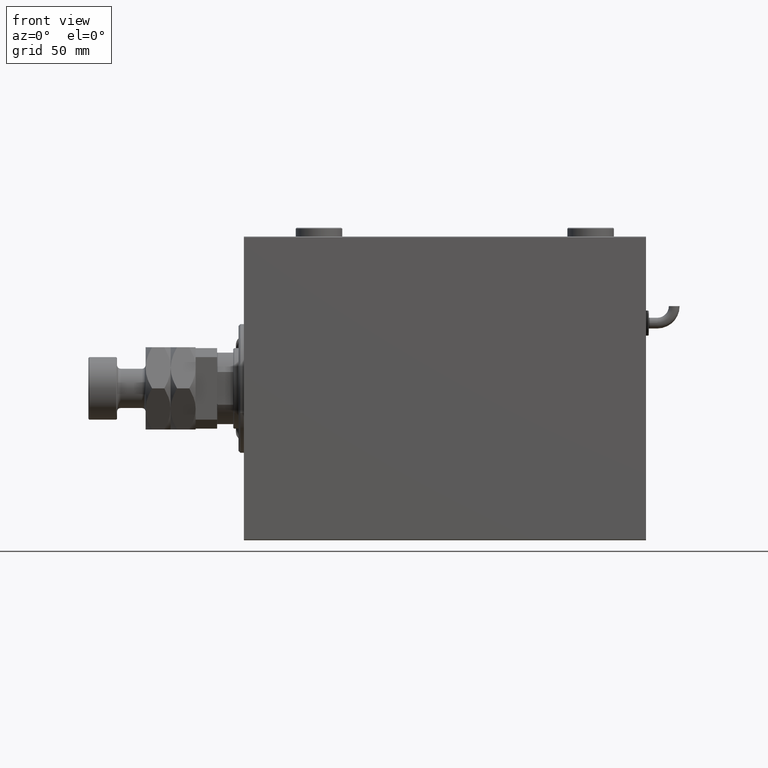
[diagram: clean part render]
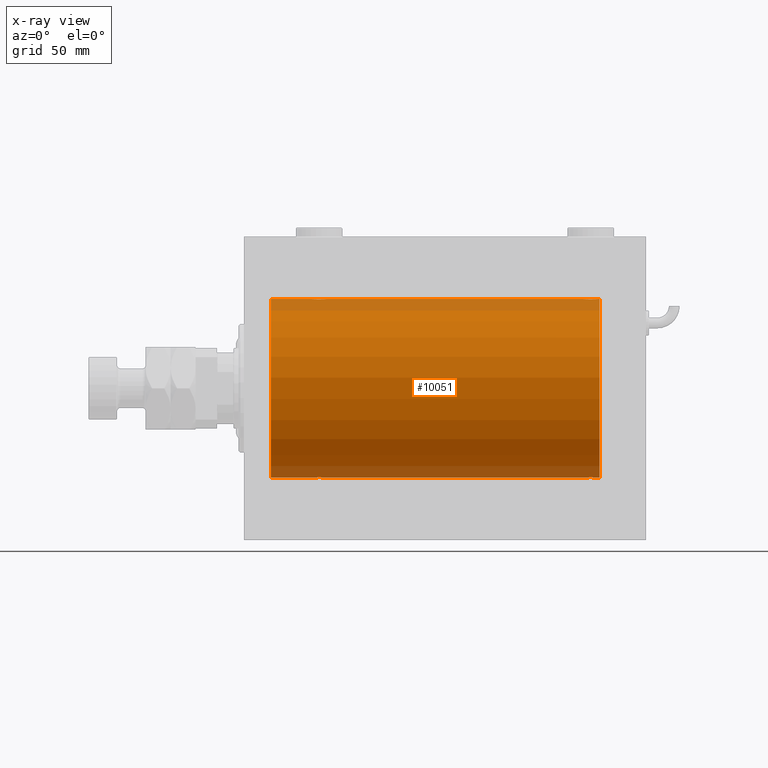
[diagram: x-ray — body ghosted, one internal face saturated and labeled with its STEP entity id]
A machine part, front view, then the same camera in x-ray: the body is ghosted and one INTERNAL B-rep face — a face not visible from any outside direction — is saturated and labeled: STEP entity #10051.
In plain terms, the highlighted cylindrical surface (partial cylindrical patch) has radius 50 mm, axis along (-1, -0, -0).
Its self-contained STEP definition (entity closure, byte-faithful):
#401 = CARTESIAN_POINT ( 'NONE',  ( 43.88217049484444487, -3.820681512513380618, 49.85392475515401856 ) ) ;
#463 = CARTESIAN_POINT ( 'NONE',  ( 46.25000000000000000, 3.663389736015513070E-16, 50.00000000000000000 ) ) ;
#626 = LINE ( 'NONE', #39404, #44967 ) ;
#698 = CARTESIAN_POINT ( 'NONE',  ( 190.6248001591803245, -2.597781786597481712, -49.93300953359122474 ) ) ;
#1006 = CARTESIAN_POINT ( 'NONE',  ( 196.1313639944615375, -3.687400765141540582, -49.86408552998298660 ) ) ;
#1328 = CARTESIAN_POINT ( 'NONE',  ( 39.86863600553844833, -3.687400765141530812, 49.86408552998298660 ) ) ;
#1381 = DIRECTION ( 'NONE',  ( 0.000000000000000000, 0.000000000000000000, 1.000000000000000000 ) ) ;
#1653 = CARTESIAN_POINT ( 'NONE',  ( 39.19302168160690769, -3.203153387937303087, -49.89767833571684008 ) ) ;
#1890 = VECTOR ( 'NONE', #51805, 1000.000000000000000 ) ;
#2011 = DIRECTION ( 'NONE',  ( -1.000000000000000000, -0.000000000000000000, -0.000000000000000000 ) ) ;
#2275 = CARTESIAN_POINT ( 'NONE',  ( 37.88750298919665482, -1.108337267831482009, -49.98846998601261760 ) ) ;
#3023 = EDGE_CURVE ( 'NONE', #11261, #37707, #18499, .T. ) ;
#3312 = CARTESIAN_POINT ( 'NONE',  ( 194.2772492703792580, -4.250219976861652427, 49.81902879621016211 ) ) ;
#4261 = LINE ( 'NONE', #43673, #46289 ) ;
#4262 = CARTESIAN_POINT ( 'NONE',  ( 191.4068727911404437, -3.378657745070624330, 49.88595615988430154 ) ) ;
#4376 = CARTESIAN_POINT ( 'NONE',  ( 15.00000000000001421, 6.123233995736766085E-15, -50.00000000000000000 ) ) ;
#4426 = LINE ( 'NONE', #61982, #54445 ) ;
#4856 = CARTESIAN_POINT ( 'NONE',  ( 189.7500000000000568, -0.2808785465865829556, -50.00000000000001421 ) ) ;
#5175 = CARTESIAN_POINT ( 'NONE',  ( 45.37519984081966840, -2.597781786597463061, 49.93300953359122474 ) ) ;
#5784 = CARTESIAN_POINT ( 'NONE',  ( 190.3139716787804332, -2.133925816755195992, -49.95498245321557818 ) ) ;
#6019 = DIRECTION ( 'NONE',  ( -1.000000000000000000, -0.000000000000000000, -0.000000000000000000 ) ) ;
#6417 = CARTESIAN_POINT ( 'NONE',  ( 43.36710647554575360, -4.033756670430848068, 49.83713703490974467 ) ) ;
#6426 = CARTESIAN_POINT ( 'NONE',  ( 39.41179785323798512, -3.382416624899766244, -49.88570010427955026 ) ) ;
#6736 = CARTESIAN_POINT ( 'NONE',  ( 45.37881717263738324, -2.593114840406115729, -49.93325460257640458 ) ) ;
#7355 = CARTESIAN_POINT ( 'NONE',  ( 45.82100581985224608, -1.881229021238117749, -49.96525240872482954 ) ) ;
#7515 = EDGE_CURVE ( 'NONE', #43473, #11261, #4261, .T. ) ;
#7634 = ORIENTED_EDGE ( 'NONE', *, *, #35667, .F. ) ;
#7860 = DIRECTION ( 'NONE',  ( -1.000000000000000000, 0.000000000000000000, 0.000000000000000000 ) ) ;
#8397 = CARTESIAN_POINT ( 'NONE',  ( 197.3751998408197323, -2.597781786597469278, 49.93300953359122474 ) ) ;
#9035 = CARTESIAN_POINT ( 'NONE',  ( 195.0973761787903982, -4.115209769591111844, 49.83039196709102470 ) ) ;
#9646 = CARTESIAN_POINT ( 'NONE',  ( 198.1124970108033949, -1.108337267831489781, 49.98846998601262470 ) ) ;
#9929 = CARTESIAN_POINT ( 'NONE',  ( 190.8007807203871664, -2.811461347331121186, -49.92127983148852621 ) ) ;
#9948 = CARTESIAN_POINT ( 'NONE',  ( 46.03079796155343928, -1.375411031076042789, 49.98173289062309266 ) ) ;
#10051 = ADVANCED_FACE ( 'NONE', ( #31270 ), #44942, .F. ) ;
#10124 = DIRECTION ( 'NONE',  ( -1.000000000000000000, -0.000000000000000000, -0.000000000000000000 ) ) ;
#10228 = CARTESIAN_POINT ( 'NONE',  ( 197.8210058198523313, -1.881229021238119969, -49.96525240872482954 ) ) ;
#10249 = CARTESIAN_POINT ( 'NONE',  ( 41.44002132304352415, -4.222042462213121183, 49.82145436824653473 ) ) ;
#10538 = CARTESIAN_POINT ( 'NONE',  ( 190.1816075101212675, -1.886522330773430234, -49.96505190380066352 ) ) ;
#10563 = CARTESIAN_POINT ( 'NONE',  ( 44.80697831839309231, -3.203153387937317298, 49.89767833571684008 ) ) ;
#10879 = CARTESIAN_POINT ( 'NONE',  ( 39.18846933484581996, -3.199146701881674382, 49.89793607725462010 ) ) ;
#11188 = CARTESIAN_POINT ( 'NONE',  ( 41.71604712973302043, -4.249777379711404457, 49.81906655360197789 ) ) ;
#11261 = VERTEX_POINT ( 'NONE', #34868 ) ;
#11378 = ORIENTED_EDGE ( 'NONE', *, *, #16493, .T. ) ;
#11430 = AXIS2_PLACEMENT_3D ( 'NONE', #14694, #15018, #34101 ) ;
#11813 = CARTESIAN_POINT ( 'NONE',  ( 46.25000000000000000, 6.123233970928975205E-15, -50.00000000000000000 ) ) ;
#12137 = CARTESIAN_POINT ( 'NONE',  ( 46.03272642097310552, -1.369753890039644872, -49.98188917176551627 ) ) ;
#12301 = CARTESIAN_POINT ( 'NONE',  ( 199.0000000000000000, 0.000000000000000000, 0.000000000000000000 ) ) ;
#12450 = CARTESIAN_POINT ( 'NONE',  ( 43.37333436579038448, -4.031616700143171528, -49.83731072121799599 ) ) ;
#12570 = CARTESIAN_POINT ( 'NONE',  ( 198.2500000000000000, 6.123233970934497231E-15, -50.00000000000000000 ) ) ;
#12861 = CARTESIAN_POINT ( 'NONE',  ( 191.1884693348458768, -3.199146701881688148, 49.89793607725461300 ) ) ;
#13180 = CARTESIAN_POINT ( 'NONE',  ( 196.5882021467620291, -3.382416624899781343, 49.88570010427955737 ) ) ;
#13799 = CARTESIAN_POINT ( 'NONE',  ( 198.0307979615535032, -1.375411031076037682, 49.98173289062309266 ) ) ;
#14382 = CARTESIAN_POINT ( 'NONE',  ( 189.7500000000000000, -1.477075025308699456E-14, -50.00000000000000000 ) ) ;
#14682 = CARTESIAN_POINT ( 'NONE',  ( 197.2030356195199374, -2.807099414226280842, -49.92152599098506727 ) ) ;
#14694 = CARTESIAN_POINT ( 'NONE',  ( 15.00000000000001421, 0.000000000000000000, 0.000000000000000000 ) ) ;
#14702 = CARTESIAN_POINT ( 'NONE',  ( 45.19921927961281938, -2.811461347331102534, 49.92127983148851911 ) ) ;
#14720 = CARTESIAN_POINT ( 'NONE',  ( 198.2500000000000000, 3.264238863893571870E-15, 50.00000000000000000 ) ) ;
#14882 = CARTESIAN_POINT ( 'NONE',  ( 37.75000000000000711, 3.968053759906218216E-15, -50.00000000000000000 ) ) ;
#14928 = DIRECTION ( 'NONE',  ( -1.000000000000000000, -0.000000000000000000, -0.000000000000000000 ) ) ;
#14991 = VERTEX_POINT ( 'NONE', #4376 ) ;
#15018 = DIRECTION ( 'NONE',  ( -1.000000000000000000, 0.000000000000000000, 0.000000000000000000 ) ) ;
#15026 = CARTESIAN_POINT ( 'NONE',  ( 43.09737617879038396, -4.115209769591109179, 49.83039196709101759 ) ) ;
#15327 = CARTESIAN_POINT ( 'NONE',  ( 37.75000000000000711, -2.480770331693776875E-23, 50.00000000000000000 ) ) ;
#15646 = CARTESIAN_POINT ( 'NONE',  ( 37.96727357902688738, -1.369753890039653310, 49.98188917176553048 ) ) ;
#15718 = CARTESIAN_POINT ( 'NONE',  ( 198.2500000000000000, 3.264238863893571870E-15, 50.00000000000000000 ) ) ;
#16271 = CARTESIAN_POINT ( 'NONE',  ( 38.62480015918035292, -2.597781786597455067, -49.93300953359122474 ) ) ;
#16493 = EDGE_CURVE ( 'NONE', #14991, #62210, #28742, .T. ) ;
#16743 = ORIENTED_EDGE ( 'NONE', *, *, #7515, .T. ) ;
#16905 = CARTESIAN_POINT ( 'NONE',  ( 46.22310752799001676, -0.5531336717328987351, -49.99769193709645521 ) ) ;
#17225 = CARTESIAN_POINT ( 'NONE',  ( 45.20303561951989479, -2.807099414226266632, -49.92152599098507437 ) ) ;
#17542 = CARTESIAN_POINT ( 'NONE',  ( 39.87368355124921493, -3.690299572754706325, -49.86386974736159772 ) ) ;
#17945 = CARTESIAN_POINT ( 'NONE',  ( 194.5540856488015606, -4.222816005855213994, 49.82138837911248430 ) ) ;
#18269 = CARTESIAN_POINT ( 'NONE',  ( 192.6266656342096724, -4.031616700143195509, 49.83731072121800310 ) ) ;
#18499 = B_SPLINE_CURVE_WITH_KNOTS ( 'NONE', 3,
 ( #11813, #35985, #16905, #21993, #12137, #7355, #26445, #6736, #17225, #36623, #56022, #45840, #45535, #12450, #31862, #27089, #46492, #45216, #55381, #31228, #41709, #61093, #17542, #6426, #1653, #21051, #16271, #35669, #55069, #50629, #2275, #21677, #41067, #60458 ),
 .UNSPECIFIED., .F., .F.,
 ( 4, 2, 2, 2, 2, 2, 2, 2, 2, 2, 2, 2, 2, 2, 2, 2, 4 ),
 ( 0.01329343152928757349, 0.01412407817529635554, 0.01495472482130513932, 0.01578537146731392310, 0.01661601811332270515, 0.01744666475933148719, 0.01827731140534026924, 0.01910795805134905129, 0.01993860469735783680, 0.02076925134336661885, 0.02159989798937540090, 0.02243054463538418294, 0.02326119128139296499, 0.02409183792740174704, 0.02492248457341052909, 0.02575313121941931460, 0.02658377786542809665 ),
 .UNSPECIFIED. ) ;
#18568 = CARTESIAN_POINT ( 'NONE',  ( 197.6860283212195100, -2.133925816755183114, 49.95498245321557107 ) ) ;
#18883 = CARTESIAN_POINT ( 'NONE',  ( 190.3106284432061841, -2.128188802142376712, 49.95522967821975158 ) ) ;
#19158 = CARTESIAN_POINT ( 'NONE',  ( 189.7775736447921986, -0.5587117664567311515, -49.99763378604802000 ) ) ;
#19373 = ORIENTED_EDGE ( 'NONE', *, *, #39258, .T. ) ;
#19453 = CARTESIAN_POINT ( 'NONE',  ( 198.0327264209731482, -1.369753890039646427, -49.98188917176553048 ) ) ;
#19473 = CARTESIAN_POINT ( 'NONE',  ( 44.12631644875080639, -3.690299572754720536, 49.86386974736160482 ) ) ;
#19764 = CARTESIAN_POINT ( 'NONE',  ( 196.5931272088595563, -3.378657745070634100, -49.88595615988430154 ) ) ;
#20082 = CARTESIAN_POINT ( 'NONE',  ( 195.3733343657903845, -4.031616700143205279, -49.83731072121799599 ) ) ;
#20204 = VERTEX_POINT ( 'NONE', #463 ) ;
#20387 = CARTESIAN_POINT ( 'NONE',  ( 192.1178295051555835, -3.820681512513397937, -49.85392475515401145 ) ) ;
#20623 = DIRECTION ( 'NONE',  ( -1.000000000000000000, -0.000000000000000000, -0.000000000000000000 ) ) ;
#20800 = EDGE_CURVE ( 'NONE', #37707, #14991, #626, .T. ) ;
#21051 = CARTESIAN_POINT ( 'NONE',  ( 38.80078072038718062, -2.811461347331092320, -49.92127983148853332 ) ) ;
#21677 = CARTESIAN_POINT ( 'NONE',  ( 37.77757364479219149, -0.5587117664567073927, -49.99763378604802000 ) ) ;
#21993 = CARTESIAN_POINT ( 'NONE',  ( 46.11431913306007147, -1.101350136471736407, -49.98862054280446898 ) ) ;
#23342 = CARTESIAN_POINT ( 'NONE',  ( 193.4400213230435384, -4.222042462213130953, 49.82145436824653473 ) ) ;
#23516 = VERTEX_POINT ( 'NONE', #12570 ) ;
#23649 = CARTESIAN_POINT ( 'NONE',  ( 189.8856808669399925, -1.101350136471745955, 49.98862054280449740 ) ) ;
#23933 = CARTESIAN_POINT ( 'NONE',  ( 192.6328935244542606, -4.033756670430864943, -49.83713703490974467 ) ) ;
#23965 = CARTESIAN_POINT ( 'NONE',  ( 192.1125526060720290, -3.818052230167728656, 49.85412671291929598 ) ) ;
#24541 = CARTESIAN_POINT ( 'NONE',  ( 197.6893715567939012, -2.128188802142362945, -49.95522967821975158 ) ) ;
#24592 = VERTEX_POINT ( 'NONE', #47806 ) ;
#24909 = VECTOR ( 'NONE', #6019, 1000.000000000000000 ) ;
#25135 = AXIS2_PLACEMENT_3D ( 'NONE', #12301, #7860, #46656 ) ;
#25165 = CARTESIAN_POINT ( 'NONE',  ( 193.7227507296208273, -4.250219976861660420, -49.81902879621013369 ) ) ;
#25895 = EDGE_CURVE ( 'NONE', #55881, #20204, #48336, .T. ) ;
#26180 = EDGE_CURVE ( 'NONE', #24592, #27603, #58805, .T. ) ;
#26445 = CARTESIAN_POINT ( 'NONE',  ( 45.68937155679385853, -2.128188802142354508, -49.95522967821975158 ) ) ;
#27089 = CARTESIAN_POINT ( 'NONE',  ( 42.55997867695646164, -4.222042462213109637, -49.82145436824654183 ) ) ;
#27492 = CARTESIAN_POINT ( 'NONE',  ( 189.7768924720100188, -0.5531336717329069508, 49.99769193709643389 ) ) ;
#27603 = VERTEX_POINT ( 'NONE', #15718 ) ;
#28117 = CARTESIAN_POINT ( 'NONE',  ( 192.8967670396579024, -4.113647494206492894, 49.83052139214893117 ) ) ;
#28742 = CIRCLE ( 'NONE', #11430, 50.00000000000000000 ) ;
#29343 = CARTESIAN_POINT ( 'NONE',  ( 46.11249701080335939, -1.108337267831489337, 49.98846998601261760 ) ) ;
#29624 = CARTESIAN_POINT ( 'NONE',  ( 195.1032329603422113, -4.113647494206493782, -49.83052139214891696 ) ) ;
#29647 = CARTESIAN_POINT ( 'NONE',  ( 46.25000000000002132, -0.2808785465865649700, 50.00000000000000711 ) ) ;
#29669 = ORIENTED_EDGE ( 'NONE', *, *, #20800, .T. ) ;
#29941 = CARTESIAN_POINT ( 'NONE',  ( 196.8115306651542369, -3.199146701881677934, -49.89793607725460589 ) ) ;
#30187 = CARTESIAN_POINT ( 'NONE',  ( 199.0000000000000000, 0.000000000000000000, 50.00000000000000000 ) ) ;
#30248 = ORIENTED_EDGE ( 'NONE', *, *, #3023, .T. ) ;
#30282 = CARTESIAN_POINT ( 'NONE',  ( 40.11255260607202189, -3.818052230167719774, 49.85412671291930309 ) ) ;
#30585 = CARTESIAN_POINT ( 'NONE',  ( 37.77689247200999745, -0.5531336717329055075, 49.99769193709644099 ) ) ;
#30946 = CARTESIAN_POINT ( 'NONE',  ( 199.0000000000000000, 0.000000000000000000, 0.000000000000000000 ) ) ;
#31228 = CARTESIAN_POINT ( 'NONE',  ( 40.90262382120962315, -4.115209769591094968, -49.83039196709103891 ) ) ;
#31270 = FACE_OUTER_BOUND ( 'NONE', #33162, .T. ) ;
#31862 = CARTESIAN_POINT ( 'NONE',  ( 43.10323296034215446, -4.113647494206469801, -49.83052139214892406 ) ) ;
#32256 = CARTESIAN_POINT ( 'NONE',  ( 189.7500000000000000, -1.477075025308699456E-14, -50.00000000000000000 ) ) ;
#32718 = LINE ( 'NONE', #42245, #1890 ) ;
#32892 = CARTESIAN_POINT ( 'NONE',  ( 189.7500000000000000, -2.480257572105383217E-23, 50.00000000000000000 ) ) ;
#33162 = EDGE_LOOP ( 'NONE', ( #7634, #19373, #48394, #16743, #30248, #29669, #11378, #45003, #59388, #54139, #59720, #43490 ) ) ;
#33483 = CARTESIAN_POINT ( 'NONE',  ( 192.9026238212096303, -4.115209769591121614, -49.83039196709102470 ) ) ;
#34086 = CARTESIAN_POINT ( 'NONE',  ( 195.8874473939279994, -3.818052230167738870, -49.85412671291929598 ) ) ;
#34101 = DIRECTION ( 'NONE',  ( 0.000000000000000000, 0.000000000000000000, 1.000000000000000000 ) ) ;
#34108 = CARTESIAN_POINT ( 'NONE',  ( 45.68602832121950286, -2.133925816755177785, 49.95498245321557107 ) ) ;
#34426 = CARTESIAN_POINT ( 'NONE',  ( 46.22242635520781562, -0.5587117664567134989, 49.99763378604802710 ) ) ;
#34729 = CARTESIAN_POINT ( 'NONE',  ( 38.17899418014773261, -1.881229021238126631, 49.96525240872482954 ) ) ;
#34868 = CARTESIAN_POINT ( 'NONE',  ( 46.25000000000000000, 6.123233970928975205E-15, -50.00000000000000000 ) ) ;
#35045 = CARTESIAN_POINT ( 'NONE',  ( 38.31062844320614147, -2.128188802142366054, 49.95522967821974447 ) ) ;
#35059 = CARTESIAN_POINT ( 'NONE',  ( 198.2224263552077730, -0.5587117664567127218, 49.99763378604802710 ) ) ;
#35667 = EDGE_CURVE ( 'NONE', #59165, #24592, #36299, .T. ) ;
#35669 = CARTESIAN_POINT ( 'NONE',  ( 38.31397167878049714, -2.133925816755172455, -49.95498245321557818 ) ) ;
#35985 = CARTESIAN_POINT ( 'NONE',  ( 46.25000000000000711, -0.2773743941468470586, -50.00000000000000711 ) ) ;
#36299 = CIRCLE ( 'NONE', #25135, 50.00000000000000000 ) ;
#36553 = EDGE_CURVE ( 'NONE', #40552, #20204, #61432, .T. ) ;
#36623 = CARTESIAN_POINT ( 'NONE',  ( 44.81153066515420136, -3.199146701881660171, -49.89793607725462010 ) ) ;
#37707 = VERTEX_POINT ( 'NONE', #14882 ) ;
#38548 = CARTESIAN_POINT ( 'NONE',  ( 191.1930216816069219, -3.203153387937335062, -49.89767833571684008 ) ) ;
#38582 = CARTESIAN_POINT ( 'NONE',  ( 198.2500000000000000, -0.2808785465865640818, 50.00000000000000711 ) ) ;
#38842 = CARTESIAN_POINT ( 'NONE',  ( 191.4117978532380278, -3.382416624899811097, -49.88570010427955737 ) ) ;
#38861 = CARTESIAN_POINT ( 'NONE',  ( 44.58820214676200067, -3.382416624899780011, 49.88570010427955737 ) ) ;
#39150 = CARTESIAN_POINT ( 'NONE',  ( 198.1143191330600644, -1.101350136471741070, -49.98862054280448319 ) ) ;
#39171 = CARTESIAN_POINT ( 'NONE',  ( 42.55408564880149669, -4.222816005855206889, 49.82138837911247009 ) ) ;
#39258 = EDGE_CURVE ( 'NONE', #59165, #23516, #32718, .T. ) ;
#39404 = CARTESIAN_POINT ( 'NONE',  ( 199.0000000000000000, 6.123233995736766085E-15, -50.00000000000000000 ) ) ;
#39659 = CARTESIAN_POINT ( 'NONE',  ( 189.7500000000000000, -2.480257572105383217E-23, 50.00000000000000000 ) ) ;
#40552 = VERTEX_POINT ( 'NONE', #44740 ) ;
#41067 = CARTESIAN_POINT ( 'NONE',  ( 37.75000000000001421, -0.2808785465865586972, -50.00000000000001421 ) ) ;
#41709 = CARTESIAN_POINT ( 'NONE',  ( 40.63289352445425351, -4.033756670430834745, -49.83713703490973757 ) ) ;
#42245 = CARTESIAN_POINT ( 'NONE',  ( 199.0000000000000000, 6.123233995736766085E-15, -50.00000000000000000 ) ) ;
#42432 = CARTESIAN_POINT ( 'NONE',  ( 191.8686360055384057, -3.687400765141532588, 49.86408552998298660 ) ) ;
#42742 = CARTESIAN_POINT ( 'NONE',  ( 196.1263164487508277, -3.690299572754723201, 49.86386974736159772 ) ) ;
#43180 = VECTOR ( 'NONE', #14928, 1000.000000000000000 ) ;
#43332 = CARTESIAN_POINT ( 'NONE',  ( 191.8736835512492291, -3.690299572754748958, -49.86386974736159061 ) ) ;
#43344 = B_SPLINE_CURVE_WITH_KNOTS ( 'NONE', 3,
 ( #32892, #62426, #27492, #23649, #51978, #47832, #18883, #56423, #57685, #12861, #4262, #42432, #23965, #18269, #28117, #23342, #46885, #3312, #17945, #9035, #43366, #61497, #42742, #13180, #61814, #62116, #8397, #18568, #57365, #13799, #9646, #35059, #38582, #14720 ),
 .UNSPECIFIED., .F., .F.,
 ( 4, 2, 2, 2, 2, 2, 2, 2, 2, 2, 2, 2, 2, 2, 2, 2, 4 ),
 ( 0.01329343152928759257, 0.01412407817529637809, 0.01495472482130516534, 0.01578537146731395086, 0.01661601811332273637, 0.01744666475933152189, 0.01827731140534030740, 0.01910795805134909292, 0.01993860469735787844, 0.02076925134336666048, 0.02159989798937544947, 0.02243054463538423499, 0.02326119128139302050, 0.02409183792740180602, 0.02492248457341059154, 0.02575313121941937705, 0.02658377786542816257 ),
 .UNSPECIFIED. ) ;
#43366 = CARTESIAN_POINT ( 'NONE',  ( 195.3671064755457678, -4.033756670430855173, 49.83713703490974467 ) ) ;
#43473 = VERTEX_POINT ( 'NONE', #32256 ) ;
#43490 = ORIENTED_EDGE ( 'NONE', *, *, #26180, .F. ) ;
#43673 = CARTESIAN_POINT ( 'NONE',  ( 199.0000000000000000, 6.123233995736766085E-15, -50.00000000000000000 ) ) ;
#43940 = CARTESIAN_POINT ( 'NONE',  ( 189.9692020384465536, -1.375411031076053447, -49.98173289062309976 ) ) ;
#44242 = AXIS2_PLACEMENT_3D ( 'NONE', #30946, #2011, #1381 ) ;
#44270 = CARTESIAN_POINT ( 'NONE',  ( 38.62118282736263097, -2.593114840406129940, 49.93325460257640458 ) ) ;
#44740 = CARTESIAN_POINT ( 'NONE',  ( 37.75000000000000711, -2.480770331693776875E-23, 50.00000000000000000 ) ) ;
#44891 = CARTESIAN_POINT ( 'NONE',  ( 38.79696438048011942, -2.807099414226279510, 49.92152599098507437 ) ) ;
#44942 = CYLINDRICAL_SURFACE ( 'NONE', #44242, 50.00000000000000000 ) ;
#44967 = VECTOR ( 'NONE', #20623, 1000.000000000000000 ) ;
#45003 = ORIENTED_EDGE ( 'NONE', *, *, #53438, .F. ) ;
#45216 = CARTESIAN_POINT ( 'NONE',  ( 41.72275072962082021, -4.250219976861628446, -49.81902879621016211 ) ) ;
#45535 = CARTESIAN_POINT ( 'NONE',  ( 43.88744739392799943, -3.818052230167706007, -49.85412671291931730 ) ) ;
#45840 = CARTESIAN_POINT ( 'NONE',  ( 44.13136399446156588, -3.687400765141517045, -49.86408552998297239 ) ) ;
#46289 = VECTOR ( 'NONE', #53530, 1000.000000000000000 ) ;
#46492 = CARTESIAN_POINT ( 'NONE',  ( 42.28395287026697247, -4.249777379711388470, -49.81906655360197789 ) ) ;
#46551 = EDGE_CURVE ( 'NONE', #23516, #43473, #49817, .T. ) ;
#46656 = DIRECTION ( 'NONE',  ( 0.000000000000000000, 0.000000000000000000, 1.000000000000000000 ) ) ;
#46885 = CARTESIAN_POINT ( 'NONE',  ( 193.7160471297329991, -4.249777379711411562, 49.81906655360197078 ) ) ;
#47806 = CARTESIAN_POINT ( 'NONE',  ( 199.0000000000000000, 0.000000000000000000, 50.00000000000000000 ) ) ;
#47832 = CARTESIAN_POINT ( 'NONE',  ( 190.1789941801477539, -1.881229021238137955, 49.96525240872482243 ) ) ;
#48336 = LINE ( 'NONE', #62007, #43180 ) ;
#48394 = ORIENTED_EDGE ( 'NONE', *, *, #46551, .T. ) ;
#49023 = CARTESIAN_POINT ( 'NONE',  ( 194.5599786769564901, -4.222042462213138947, -49.82145436824653473 ) ) ;
#49343 = CARTESIAN_POINT ( 'NONE',  ( 193.4459143511985246, -4.222816005855223764, -49.82138837911247009 ) ) ;
#49364 = CARTESIAN_POINT ( 'NONE',  ( 37.88568086693991432, -1.101350136471744623, 49.98862054280448319 ) ) ;
#49817 = B_SPLINE_CURVE_WITH_KNOTS ( 'NONE', 3,
 ( #53175, #53493, #54107, #39150, #19453, #10228, #24541, #57951, #14682, #29941, #19764, #1006, #34086, #20082, #29624, #49023, #58882, #25165, #49343, #33483, #23933, #20387, #43332, #38842, #38548, #9929, #698, #5784, #10538, #43940, #62707, #19158, #4856, #14382 ),
 .UNSPECIFIED., .F., .F.,
 ( 4, 2, 2, 2, 2, 2, 2, 2, 2, 2, 2, 2, 2, 2, 2, 2, 4 ),
 ( 0.01329343152928758216, 0.01412407817529636768, 0.01495472482130515320, 0.01578537146731394045, 0.01661601811332272596, 0.01744666475933151148, 0.01827731140534029700, 0.01910795805134908251, 0.01993860469735786803, 0.02076925134336665354, 0.02159989798937544253, 0.02243054463538422805, 0.02326119128139301356, 0.02409183792740179908, 0.02492248457341058460, 0.02575313121941937011, 0.02658377786542815563 ),
 .UNSPECIFIED. ) ;
#49984 = CARTESIAN_POINT ( 'NONE',  ( 42.27724927037918690, -4.250219976861641769, 49.81902879621012659 ) ) ;
#50195 = CARTESIAN_POINT ( 'NONE',  ( 199.0000000000000000, 6.123233995736766085E-15, -50.00000000000000000 ) ) ;
#50629 = CARTESIAN_POINT ( 'NONE',  ( 37.96920203844656783, -1.375411031076034130, -49.98173289062310687 ) ) ;
#51764 = CARTESIAN_POINT ( 'NONE',  ( 15.00000000000001421, 0.000000000000000000, 50.00000000000000000 ) ) ;
#51805 = DIRECTION ( 'NONE',  ( -1.000000000000000000, -0.000000000000000000, -0.000000000000000000 ) ) ;
#51978 = CARTESIAN_POINT ( 'NONE',  ( 189.9672735790269087, -1.369753890039665301, 49.98188917176553048 ) ) ;
#52512 = EDGE_CURVE ( 'NONE', #55881, #27603, #43344, .T. ) ;
#53175 = CARTESIAN_POINT ( 'NONE',  ( 198.2500000000000000, 6.123233970934497231E-15, -50.00000000000000000 ) ) ;
#53438 = EDGE_CURVE ( 'NONE', #40552, #62210, #4426, .T. ) ;
#53493 = CARTESIAN_POINT ( 'NONE',  ( 198.2500000000000284, -0.2773743941468493346, -50.00000000000000711 ) ) ;
#53514 = CARTESIAN_POINT ( 'NONE',  ( 45.81839248987872537, -1.886522330773416911, 49.96505190380066352 ) ) ;
#53530 = DIRECTION ( 'NONE',  ( -1.000000000000000000, -0.000000000000000000, -0.000000000000000000 ) ) ;
#54107 = CARTESIAN_POINT ( 'NONE',  ( 198.2231075279900097, -0.5531336717329021768, -49.99769193709643389 ) ) ;
#54130 = CARTESIAN_POINT ( 'NONE',  ( 40.62666563420964394, -4.031616700143185739, 49.83731072121799599 ) ) ;
#54139 = ORIENTED_EDGE ( 'NONE', *, *, #25895, .F. ) ;
#54445 = VECTOR ( 'NONE', #10124, 1000.000000000000000 ) ;
#54759 = CARTESIAN_POINT ( 'NONE',  ( 40.89676703965784554, -4.113647494206482236, 49.83052139214891696 ) ) ;
#55069 = CARTESIAN_POINT ( 'NONE',  ( 38.18160751012128884, -1.886522330773408695, -49.96505190380065642 ) ) ;
#55381 = CARTESIAN_POINT ( 'NONE',  ( 41.44591435119851752, -4.222816005855191790, -49.82138837911247720 ) ) ;
#55881 = VERTEX_POINT ( 'NONE', #39659 ) ;
#56022 = CARTESIAN_POINT ( 'NONE',  ( 44.59312720885954917, -3.378657745070611895, -49.88595615988430154 ) ) ;
#56423 = CARTESIAN_POINT ( 'NONE',  ( 190.6211828273626452, -2.593114840406140598, 49.93325460257639747 ) ) ;
#57365 = CARTESIAN_POINT ( 'NONE',  ( 197.8183924898787609, -1.886522330773414913, 49.96505190380066352 ) ) ;
#57685 = CARTESIAN_POINT ( 'NONE',  ( 190.7969643804800910, -2.807099414226295053, 49.92152599098504595 ) ) ;
#57951 = CARTESIAN_POINT ( 'NONE',  ( 197.3788171726373832, -2.593114840406129495, -49.93325460257641879 ) ) ;
#58592 = CARTESIAN_POINT ( 'NONE',  ( 46.25000000000000000, 3.663389736015513070E-16, 50.00000000000000000 ) ) ;
#58805 = LINE ( 'NONE', #30187, #24909 ) ;
#58882 = CARTESIAN_POINT ( 'NONE',  ( 194.2839528702670009, -4.249777379711420444, -49.81906655360197789 ) ) ;
#59165 = VERTEX_POINT ( 'NONE', #50195 ) ;
#59206 = CARTESIAN_POINT ( 'NONE',  ( 37.74999999999999289, -0.2773743941468543306, 50.00000000000000000 ) ) ;
#59388 = ORIENTED_EDGE ( 'NONE', *, *, #36553, .T. ) ;
#59517 = CARTESIAN_POINT ( 'NONE',  ( 39.40687279114045793, -3.378657745070626106, 49.88595615988430154 ) ) ;
#59720 = ORIENTED_EDGE ( 'NONE', *, *, #52512, .T. ) ;
#60458 = CARTESIAN_POINT ( 'NONE',  ( 37.75000000000000711, 3.968053759906218216E-15, -50.00000000000000000 ) ) ;
#61093 = CARTESIAN_POINT ( 'NONE',  ( 40.11782950515556934, -3.820681512513366851, -49.85392475515399724 ) ) ;
#61432 = B_SPLINE_CURVE_WITH_KNOTS ( 'NONE', 3,
 ( #15327, #59206, #30585, #49364, #15646, #34729, #35045, #44270, #44891, #10879, #59517, #1328, #30282, #54130, #54759, #10249, #11188, #49984, #39171, #15026, #6417, #401, #19473, #38861, #10563, #14702, #5175, #34108, #53514, #9948, #29343, #34426, #29647, #58592 ),
 .UNSPECIFIED., .F., .F.,
 ( 4, 2, 2, 2, 2, 2, 2, 2, 2, 2, 2, 2, 2, 2, 2, 2, 4 ),
 ( 0.01329343152928756135, 0.01412407817529634513, 0.01495472482130512891, 0.01578537146731391269, 0.01661601811332269474, 0.01744666475933148025, 0.01827731140534026577, 0.01910795805134905129, 0.01993860469735783680, 0.02076925134336661885, 0.02159989798937540437, 0.02243054463538418988, 0.02326119128139297193, 0.02409183792740175745, 0.02492248457341054296, 0.02575313121941932848, 0.02658377786542811400 ),
 .UNSPECIFIED. ) ;
#61497 = CARTESIAN_POINT ( 'NONE',  ( 195.8821704948445017, -3.820681512513387723, 49.85392475515400434 ) ) ;
#61814 = CARTESIAN_POINT ( 'NONE',  ( 196.8069783183931065, -3.203153387937324847, 49.89767833571684719 ) ) ;
#61982 = CARTESIAN_POINT ( 'NONE',  ( 199.0000000000000000, 0.000000000000000000, 50.00000000000000000 ) ) ;
#62007 = CARTESIAN_POINT ( 'NONE',  ( 199.0000000000000000, 0.000000000000000000, 50.00000000000000000 ) ) ;
#62116 = CARTESIAN_POINT ( 'NONE',  ( 197.1992192796127767, -2.811461347331109639, 49.92127983148851911 ) ) ;
#62210 = VERTEX_POINT ( 'NONE', #51764 ) ;
#62426 = CARTESIAN_POINT ( 'NONE',  ( 189.7500000000000284, -0.2773743941468547192, 50.00000000000000711 ) ) ;
#62707 = CARTESIAN_POINT ( 'NONE',  ( 189.8875029891966619, -1.108337267831509543, -49.98846998601261760 ) ) ;